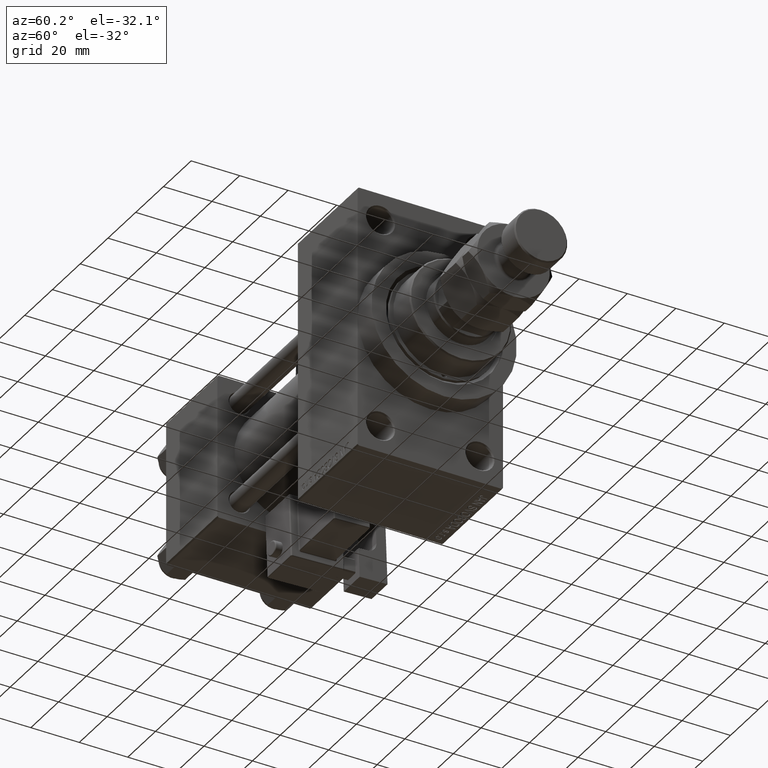
[diagram: clean part render]
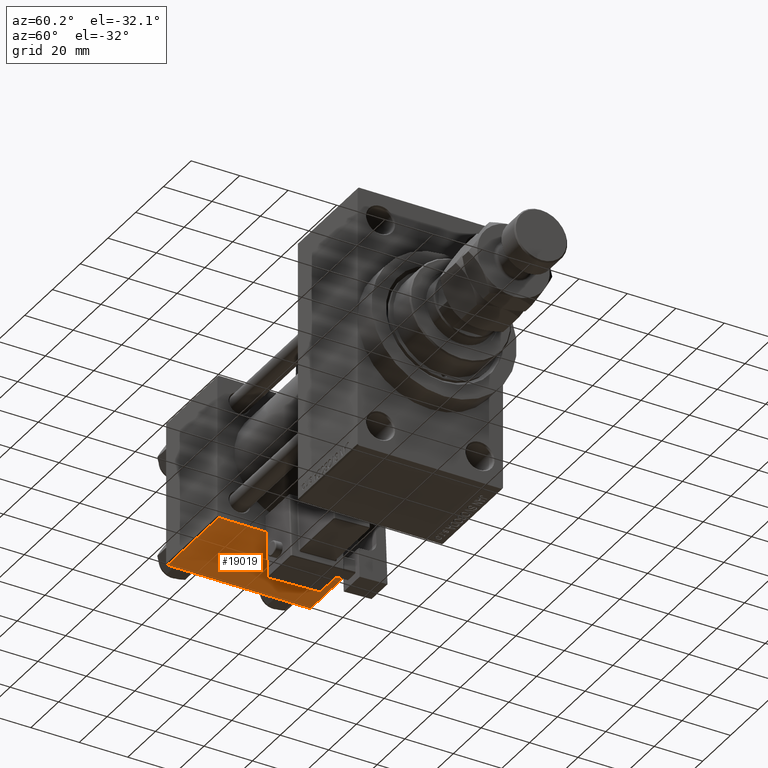
[diagram: same view with one face highlighted and labeled with its STEP entity id]
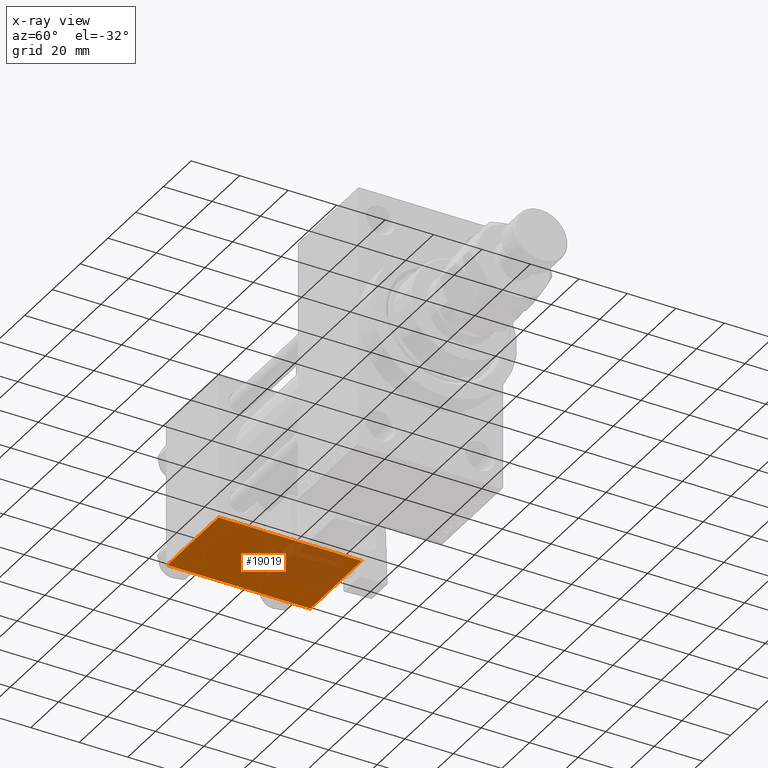
[diagram: x-ray of the same camera — body ghosted, the highlighted face saturated]
A machine part, auxiliary view. The second image highlights one B-rep face of the part: STEP entity #19019.
The next image is the same camera in x-ray: the body ghosted, the highlighted face saturated — about 30% of this face is hidden behind the body in this view.
In plain terms, the highlighted planar face has unit normal (0, 0, -1).
Its self-contained STEP definition (entity closure, byte-faithful):
#1338 = ORIENTED_EDGE ( 'NONE', *, *, #20707, .T. ) ;
#4705 = EDGE_LOOP ( 'NONE', ( #6070, #40129, #26593, #1338 ) ) ;
#6028 = CARTESIAN_POINT ( 'NONE',  ( 37.00000000000000000, 29.99999999999999289, -30.00000000000000000 ) ) ;
#6070 = ORIENTED_EDGE ( 'NONE', *, *, #19491, .F. ) ;
#6240 = DIRECTION ( 'NONE',  ( 0.000000000000000000, -1.000000000000000000, -1.156482317317871725E-16 ) ) ;
#6416 = DIRECTION ( 'NONE',  ( 0.000000000000000000, 1.000000000000000000, 1.156482317317871725E-16 ) ) ;
#7709 = LINE ( 'NONE', #30590, #35589 ) ;
#9613 = VERTEX_POINT ( 'NONE', #13426 ) ;
#9750 = VERTEX_POINT ( 'NONE', #17578 ) ;
#10736 = VECTOR ( 'NONE', #41901, 1000.000000000000000 ) ;
#13426 = CARTESIAN_POINT ( 'NONE',  ( 37.00000000000000000, -29.50000000000000000, -30.00000000000000711 ) ) ;
#16967 = EDGE_CURVE ( 'NONE', #45192, #30760, #7709, .T. ) ;
#17578 = CARTESIAN_POINT ( 'NONE',  ( 0.000000000000000000, -29.50000000000000000, -30.00000000000000711 ) ) ;
#17852 = CARTESIAN_POINT ( 'NONE',  ( 37.00000000000000000, 29.99999999999999289, -30.00000000000000000 ) ) ;
#19019 = ADVANCED_FACE ( 'NONE', ( #34732 ), #46447, .T. ) ;
#19491 = EDGE_CURVE ( 'NONE', #45192, #9750, #44974, .T. ) ;
#20707 = EDGE_CURVE ( 'NONE', #9613, #9750, #39991, .T. ) ;
#21066 = CARTESIAN_POINT ( 'NONE',  ( 37.00000000000000000, 29.49999999999997868, -30.00000000000000000 ) ) ;
#21091 = LINE ( 'NONE', #6028, #10736 ) ;
#21729 = EDGE_CURVE ( 'NONE', #30760, #9613, #21091, .T. ) ;
#22018 = DIRECTION ( 'NONE',  ( 0.000000000000000000, 1.156482317317871725E-16, -1.000000000000000000 ) ) ;
#23556 = DIRECTION ( 'NONE',  ( 1.000000000000000000, 0.000000000000000000, 0.000000000000000000 ) ) ;
#26593 = ORIENTED_EDGE ( 'NONE', *, *, #21729, .T. ) ;
#30590 = CARTESIAN_POINT ( 'NONE',  ( 37.00000000000000000, 29.49999999999997868, -30.00000000000000000 ) ) ;
#30760 = VERTEX_POINT ( 'NONE', #21066 ) ;
#32202 = VECTOR ( 'NONE', #6240, 1000.000000000000000 ) ;
#33007 = CARTESIAN_POINT ( 'NONE',  ( 0.000000000000000000, 29.99999999999999289, -30.00000000000000000 ) ) ;
#34732 = FACE_OUTER_BOUND ( 'NONE', #4705, .T. ) ;
#35580 = DIRECTION ( 'NONE',  ( -1.000000000000000000, 0.000000000000000000, 0.000000000000000000 ) ) ;
#35589 = VECTOR ( 'NONE', #23556, 1000.000000000000000 ) ;
#36355 = AXIS2_PLACEMENT_3D ( 'NONE', #17852, #22018, #6416 ) ;
#39991 = LINE ( 'NONE', #40250, #48073 ) ;
#40129 = ORIENTED_EDGE ( 'NONE', *, *, #16967, .T. ) ;
#40250 = CARTESIAN_POINT ( 'NONE',  ( 0.000000000000000000, -29.50000000000001066, -30.00000000000000711 ) ) ;
#41901 = DIRECTION ( 'NONE',  ( 0.000000000000000000, -1.000000000000000000, -1.156482317317871725E-16 ) ) ;
#44974 = LINE ( 'NONE', #33007, #32202 ) ;
#45192 = VERTEX_POINT ( 'NONE', #50095 ) ;
#46447 = PLANE ( 'NONE',  #36355 ) ;
#48073 = VECTOR ( 'NONE', #35580, 1000.000000000000000 ) ;
#50095 = CARTESIAN_POINT ( 'NONE',  ( 0.000000000000000000, 29.49999999999997868, -30.00000000000000000 ) ) ;